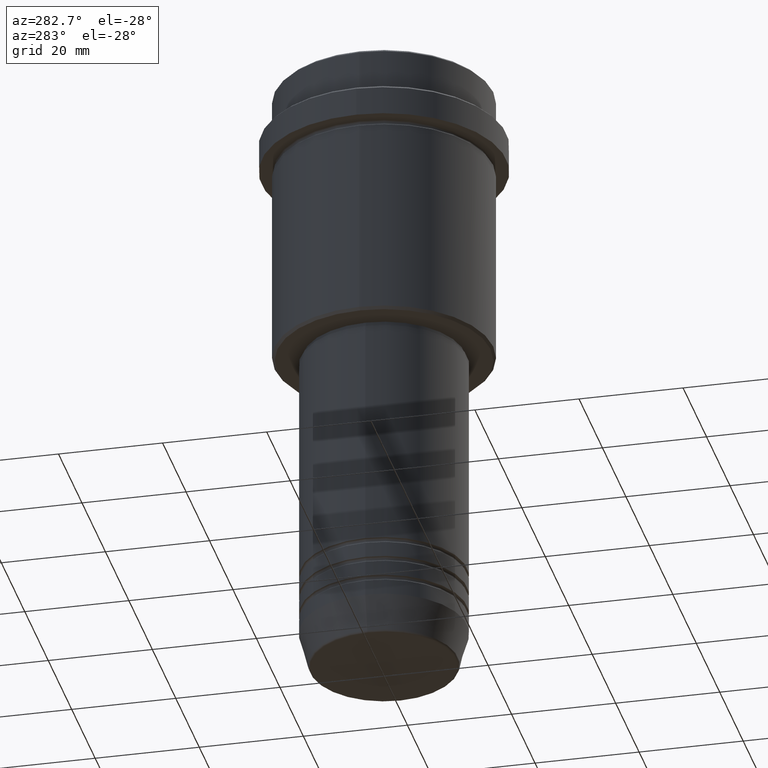
[diagram: clean part render]
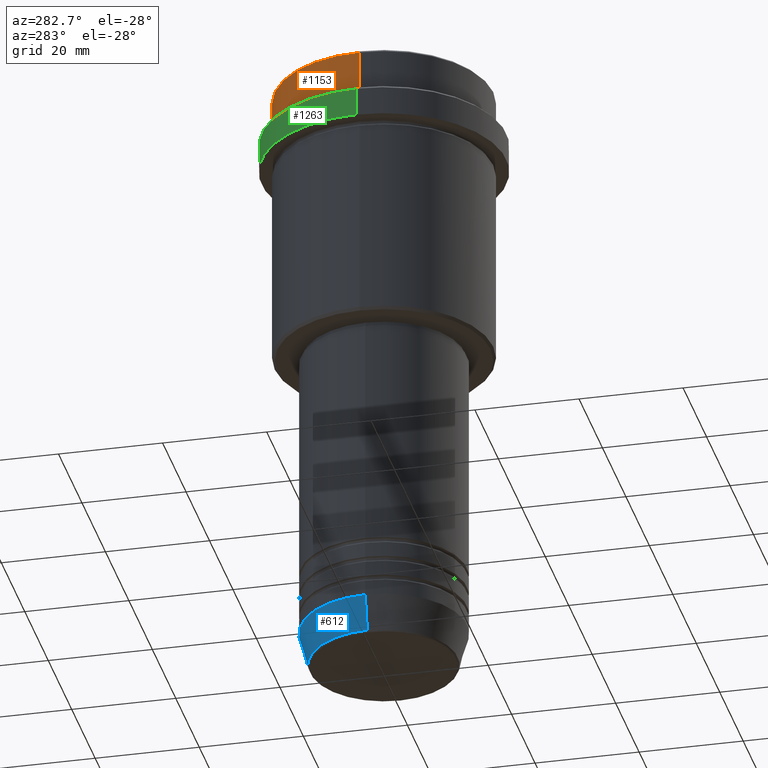
[diagram: same view with three faces highlighted in distinct colors, each labeled with its STEP entity id]
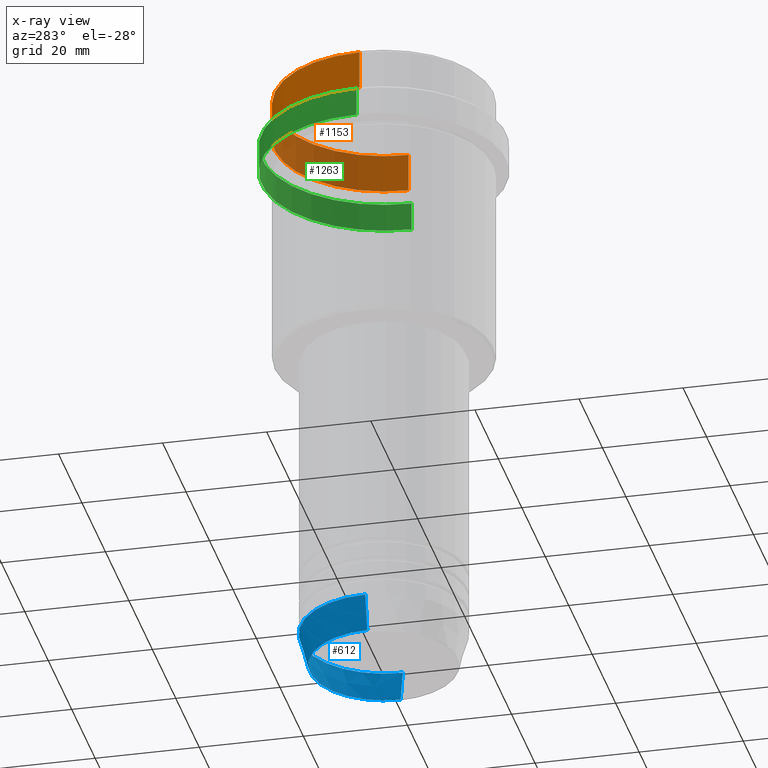
[diagram: x-ray of the same camera — body ghosted, the three highlighted faces saturated]
A machine part, auxiliary view with three faces highlighted in distinct colors.
The next image is the same camera in x-ray (body ghosted, the three faces saturated) — at least one of them is partly hidden behind the body in this view.
Their STEP definitions:

[orange] entity #1153 — the highlighted cylindrical surface (partial cylindrical patch) has radius 21 mm, axis along (-0, -0, 1).
#38 = AXIS2_PLACEMENT_3D ( 'NONE', #304, #880, #1109 ) ;
#54 = DIRECTION ( 'NONE',  ( 0.000000000000000000, 0.000000000000000000, -1.000000000000000000 ) ) ;
#63 = VECTOR ( 'NONE', #295, 1000.000000000000000 ) ;
#70 = CARTESIAN_POINT ( 'NONE',  ( -21.00000000000000000, 2.571758278209441661E-15, 0.000000000000000000 ) ) ;
#149 = LINE ( 'NONE', #1029, #1339 ) ;
#172 = VERTEX_POINT ( 'NONE', #1070 ) ;
#187 = CYLINDRICAL_SURFACE ( 'NONE', #540, 21.00000000000000000 ) ;
#191 = DIRECTION ( 'NONE',  ( 1.000000000000000000, 0.000000000000000000, 0.000000000000000000 ) ) ;
#214 = FACE_OUTER_BOUND ( 'NONE', #768, .T. ) ;
#295 = DIRECTION ( 'NONE',  ( -0.000000000000000000, -0.000000000000000000, 1.000000000000000000 ) ) ;
#304 = CARTESIAN_POINT ( 'NONE',  ( 0.000000000000000000, 0.000000000000000000, -7.999999999999998224 ) ) ;
#322 = VERTEX_POINT ( 'NONE', #704 ) ;
#347 = ORIENTED_EDGE ( 'NONE', *, *, #1400, .T. ) ;
#368 = VERTEX_POINT ( 'NONE', #926 ) ;
#382 = ORIENTED_EDGE ( 'NONE', *, *, #812, .T. ) ;
#383 = CIRCLE ( 'NONE', #1340, 21.00000000000000000 ) ;
#420 = VERTEX_POINT ( 'NONE', #1413 ) ;
#506 = CARTESIAN_POINT ( 'NONE',  ( 0.000000000000000000, 0.000000000000000000, -0.4999999999999831246 ) ) ;
#540 = AXIS2_PLACEMENT_3D ( 'NONE', #736, #1295, #1283 ) ;
#592 = DIRECTION ( 'NONE',  ( -0.000000000000000000, -0.000000000000000000, 1.000000000000000000 ) ) ;
#704 = CARTESIAN_POINT ( 'NONE',  ( -21.00000000000000000, 2.571758278209441661E-15, -7.999999999999998224 ) ) ;
#736 = CARTESIAN_POINT ( 'NONE',  ( 0.000000000000000000, 0.000000000000000000, 0.000000000000000000 ) ) ;
#768 = EDGE_LOOP ( 'NONE', ( #382, #347, #1259, #969 ) ) ;
#812 = EDGE_CURVE ( 'NONE', #420, #322, #1313, .T. ) ;
#842 = LINE ( 'NONE', #70, #63 ) ;
#880 = DIRECTION ( 'NONE',  ( -0.000000000000000000, -0.000000000000000000, 1.000000000000000000 ) ) ;
#886 = EDGE_CURVE ( 'NONE', #420, #172, #149, .T. ) ;
#926 = CARTESIAN_POINT ( 'NONE',  ( -21.00000000000000000, 2.571758278209441661E-15, -0.4999999999999831246 ) ) ;
#969 = ORIENTED_EDGE ( 'NONE', *, *, #886, .F. ) ;
#981 = EDGE_CURVE ( 'NONE', #368, #172, #383, .T. ) ;
#1029 = CARTESIAN_POINT ( 'NONE',  ( 21.00000000000000000, 0.000000000000000000, 0.000000000000000000 ) ) ;
#1070 = CARTESIAN_POINT ( 'NONE',  ( 21.00000000000000000, 0.000000000000000000, -0.4999999999999831246 ) ) ;
#1109 = DIRECTION ( 'NONE',  ( 1.000000000000000000, 0.000000000000000000, 0.000000000000000000 ) ) ;
#1153 = ADVANCED_FACE ( 'NONE', ( #214 ), #187, .T. ) ;
#1259 = ORIENTED_EDGE ( 'NONE', *, *, #981, .T. ) ;
#1283 = DIRECTION ( 'NONE',  ( 1.000000000000000000, 0.000000000000000000, 0.000000000000000000 ) ) ;
#1295 = DIRECTION ( 'NONE',  ( -0.000000000000000000, -0.000000000000000000, 1.000000000000000000 ) ) ;
#1313 = CIRCLE ( 'NONE', #38, 21.00000000000000000 ) ;
#1339 = VECTOR ( 'NONE', #592, 1000.000000000000000 ) ;
#1340 = AXIS2_PLACEMENT_3D ( 'NONE', #506, #54, #191 ) ;
#1400 = EDGE_CURVE ( 'NONE', #322, #368, #842, .T. ) ;
#1413 = CARTESIAN_POINT ( 'NONE',  ( 21.00000000000000000, 0.000000000000000000, -7.999999999999998224 ) ) ;

[blue] entity #612 — the highlighted conical surface has half-angle 15 deg.
#46 = LINE ( 'NONE', #1372, #384 ) ;
#68 = EDGE_LOOP ( 'NONE', ( #1255, #1022, #108, #1013 ) ) ;
#108 = ORIENTED_EDGE ( 'NONE', *, *, #321, .F. ) ;
#143 = LINE ( 'NONE', #783, #1287 ) ;
#159 = DIRECTION ( 'NONE',  ( 1.000000000000000000, 0.000000000000000000, 0.000000000000000000 ) ) ;
#222 = AXIS2_PLACEMENT_3D ( 'NONE', #1242, #906, #159 ) ;
#274 = DIRECTION ( 'NONE',  ( 1.000000000000000000, 0.000000000000000000, 0.000000000000000000 ) ) ;
#321 = EDGE_CURVE ( 'NONE', #1322, #1416, #1269, .T. ) ;
#384 = VECTOR ( 'NONE', #398, 1000.000000000000000 ) ;
#398 = DIRECTION ( 'NONE',  ( 0.2588190451025213501, 0.000000000000000000, 0.9659258262890680902 ) ) ;
#528 = DIRECTION ( 'NONE',  ( -0.000000000000000000, -0.000000000000000000, 1.000000000000000000 ) ) ;
#561 = VERTEX_POINT ( 'NONE', #1045 ) ;
#612 = ADVANCED_FACE ( 'NONE', ( #1320 ), #1343, .T. ) ;
#630 = AXIS2_PLACEMENT_3D ( 'NONE', #934, #1364, #274 ) ;
#649 = VERTEX_POINT ( 'NONE', #1195 ) ;
#732 = CARTESIAN_POINT ( 'NONE',  ( -16.00000000000000000, 1.959434878635765131E-15, -113.0000000000000000 ) ) ;
#765 = DIRECTION ( 'NONE',  ( 1.000000000000000000, 0.000000000000000000, 0.000000000000000000 ) ) ;
#783 = CARTESIAN_POINT ( 'NONE',  ( -16.00000000000000000, 1.959434878635765131E-15, -113.0000000000000000 ) ) ;
#791 = AXIS2_PLACEMENT_3D ( 'NONE', #1004, #528, #765 ) ;
#877 = CARTESIAN_POINT ( 'NONE',  ( 16.00000000000000000, 0.000000000000000000, -113.0000000000000000 ) ) ;
#897 = EDGE_CURVE ( 'NONE', #649, #1416, #143, .T. ) ;
#906 = DIRECTION ( 'NONE',  ( -0.000000000000000000, -0.000000000000000000, 1.000000000000000000 ) ) ;
#934 = CARTESIAN_POINT ( 'NONE',  ( 0.000000000000000000, 0.000000000000000000, -119.6294095225512564 ) ) ;
#1004 = CARTESIAN_POINT ( 'NONE',  ( 0.000000000000000000, 0.000000000000000000, -113.0000000000000000 ) ) ;
#1013 = ORIENTED_EDGE ( 'NONE', *, *, #1249, .F. ) ;
#1022 = ORIENTED_EDGE ( 'NONE', *, *, #897, .T. ) ;
#1045 = CARTESIAN_POINT ( 'NONE',  ( 14.22365507213718949, 0.000000000000000000, -119.6294095225512564 ) ) ;
#1195 = CARTESIAN_POINT ( 'NONE',  ( -14.22365507213718949, 1.850665122131323731E-15, -119.6294095225512564 ) ) ;
#1218 = EDGE_CURVE ( 'NONE', #561, #649, #1250, .T. ) ;
#1229 = DIRECTION ( 'NONE',  ( -0.2588190451025213501, 3.169619151431772337E-17, 0.9659258262890680902 ) ) ;
#1242 = CARTESIAN_POINT ( 'NONE',  ( 0.000000000000000000, 0.000000000000000000, -113.0000000000000000 ) ) ;
#1249 = EDGE_CURVE ( 'NONE', #561, #1322, #46, .T. ) ;
#1250 = CIRCLE ( 'NONE', #630, 14.22365507213718949 ) ;
#1255 = ORIENTED_EDGE ( 'NONE', *, *, #1218, .T. ) ;
#1269 = CIRCLE ( 'NONE', #222, 16.00000000000000000 ) ;
#1287 = VECTOR ( 'NONE', #1229, 1000.000000000000000 ) ;
#1320 = FACE_OUTER_BOUND ( 'NONE', #68, .T. ) ;
#1322 = VERTEX_POINT ( 'NONE', #877 ) ;
#1343 = CONICAL_SURFACE ( 'NONE', #791, 16.00000000000000000, 0.2617993877991500740 ) ;
#1364 = DIRECTION ( 'NONE',  ( -0.000000000000000000, -0.000000000000000000, 1.000000000000000000 ) ) ;
#1372 = CARTESIAN_POINT ( 'NONE',  ( 16.00000000000000000, 0.000000000000000000, -113.0000000000000000 ) ) ;
#1416 = VERTEX_POINT ( 'NONE', #732 ) ;

[green] entity #1263 — the highlighted cylindrical surface (partial cylindrical patch) has radius 23.5 mm, axis along (-0, -0, 1).
#161 = CARTESIAN_POINT ( 'NONE',  ( 0.000000000000000000, 0.000000000000000000, 0.000000000000000000 ) ) ;
#175 = AXIS2_PLACEMENT_3D ( 'NONE', #1124, #688, #261 ) ;
#208 = CARTESIAN_POINT ( 'NONE',  ( -23.50000000000000000, 2.877919977996280320E-15, 0.000000000000000000 ) ) ;
#256 = CARTESIAN_POINT ( 'NONE',  ( 23.50000000000000355, 0.000000000000000000, -15.00000000000000000 ) ) ;
#261 = DIRECTION ( 'NONE',  ( 1.000000000000000000, 0.000000000000000000, 0.000000000000000000 ) ) ;
#273 = VERTEX_POINT ( 'NONE', #1035 ) ;
#275 = DIRECTION ( 'NONE',  ( -0.000000000000000000, -0.000000000000000000, 1.000000000000000000 ) ) ;
#387 = VECTOR ( 'NONE', #827, 1000.000000000000000 ) ;
#443 = CARTESIAN_POINT ( 'NONE',  ( -23.50000000000000711, 2.877919977996281109E-15, -15.00000000000000000 ) ) ;
#480 = ORIENTED_EDGE ( 'NONE', *, *, #872, .T. ) ;
#500 = EDGE_CURVE ( 'NONE', #941, #711, #1292, .T. ) ;
#503 = DIRECTION ( 'NONE',  ( -0.000000000000000000, -0.000000000000000000, 1.000000000000000000 ) ) ;
#533 = LINE ( 'NONE', #208, #1204 ) ;
#546 = DIRECTION ( 'NONE',  ( 1.000000000000000000, 0.000000000000000000, 0.000000000000000000 ) ) ;
#627 = CIRCLE ( 'NONE', #175, 23.50000000000000000 ) ;
#643 = DIRECTION ( 'NONE',  ( -0.000000000000000000, -0.000000000000000000, 1.000000000000000000 ) ) ;
#688 = DIRECTION ( 'NONE',  ( 0.000000000000000000, 0.000000000000000000, -1.000000000000000000 ) ) ;
#711 = VERTEX_POINT ( 'NONE', #443 ) ;
#719 = CYLINDRICAL_SURFACE ( 'NONE', #798, 23.50000000000000000 ) ;
#739 = LINE ( 'NONE', #1173, #387 ) ;
#798 = AXIS2_PLACEMENT_3D ( 'NONE', #161, #275, #546 ) ;
#827 = DIRECTION ( 'NONE',  ( -0.000000000000000000, -0.000000000000000000, 1.000000000000000000 ) ) ;
#872 = EDGE_CURVE ( 'NONE', #711, #273, #533, .T. ) ;
#901 = EDGE_CURVE ( 'NONE', #273, #923, #627, .T. ) ;
#923 = VERTEX_POINT ( 'NONE', #1222 ) ;
#941 = VERTEX_POINT ( 'NONE', #256 ) ;
#963 = EDGE_LOOP ( 'NONE', ( #972, #480, #1114, #1171 ) ) ;
#972 = ORIENTED_EDGE ( 'NONE', *, *, #500, .T. ) ;
#1035 = CARTESIAN_POINT ( 'NONE',  ( -23.50000000000000000, 2.877919977996280320E-15, -9.500000000000026645 ) ) ;
#1059 = CARTESIAN_POINT ( 'NONE',  ( 0.000000000000000000, 0.000000000000000000, -15.00000000000000000 ) ) ;
#1114 = ORIENTED_EDGE ( 'NONE', *, *, #901, .T. ) ;
#1124 = CARTESIAN_POINT ( 'NONE',  ( 0.000000000000000000, 0.000000000000000000, -9.500000000000026645 ) ) ;
#1171 = ORIENTED_EDGE ( 'NONE', *, *, #1415, .F. ) ;
#1173 = CARTESIAN_POINT ( 'NONE',  ( 23.50000000000000000, 0.000000000000000000, 0.000000000000000000 ) ) ;
#1204 = VECTOR ( 'NONE', #643, 1000.000000000000000 ) ;
#1222 = CARTESIAN_POINT ( 'NONE',  ( 23.50000000000000000, 0.000000000000000000, -9.500000000000026645 ) ) ;
#1263 = ADVANCED_FACE ( 'NONE', ( #1354 ), #719, .T. ) ;
#1292 = CIRCLE ( 'NONE', #1362, 23.50000000000000355 ) ;
#1354 = FACE_OUTER_BOUND ( 'NONE', #963, .T. ) ;
#1362 = AXIS2_PLACEMENT_3D ( 'NONE', #1059, #503, #1374 ) ;
#1374 = DIRECTION ( 'NONE',  ( 1.000000000000000000, 0.000000000000000000, 0.000000000000000000 ) ) ;
#1415 = EDGE_CURVE ( 'NONE', #941, #923, #739, .T. ) ;